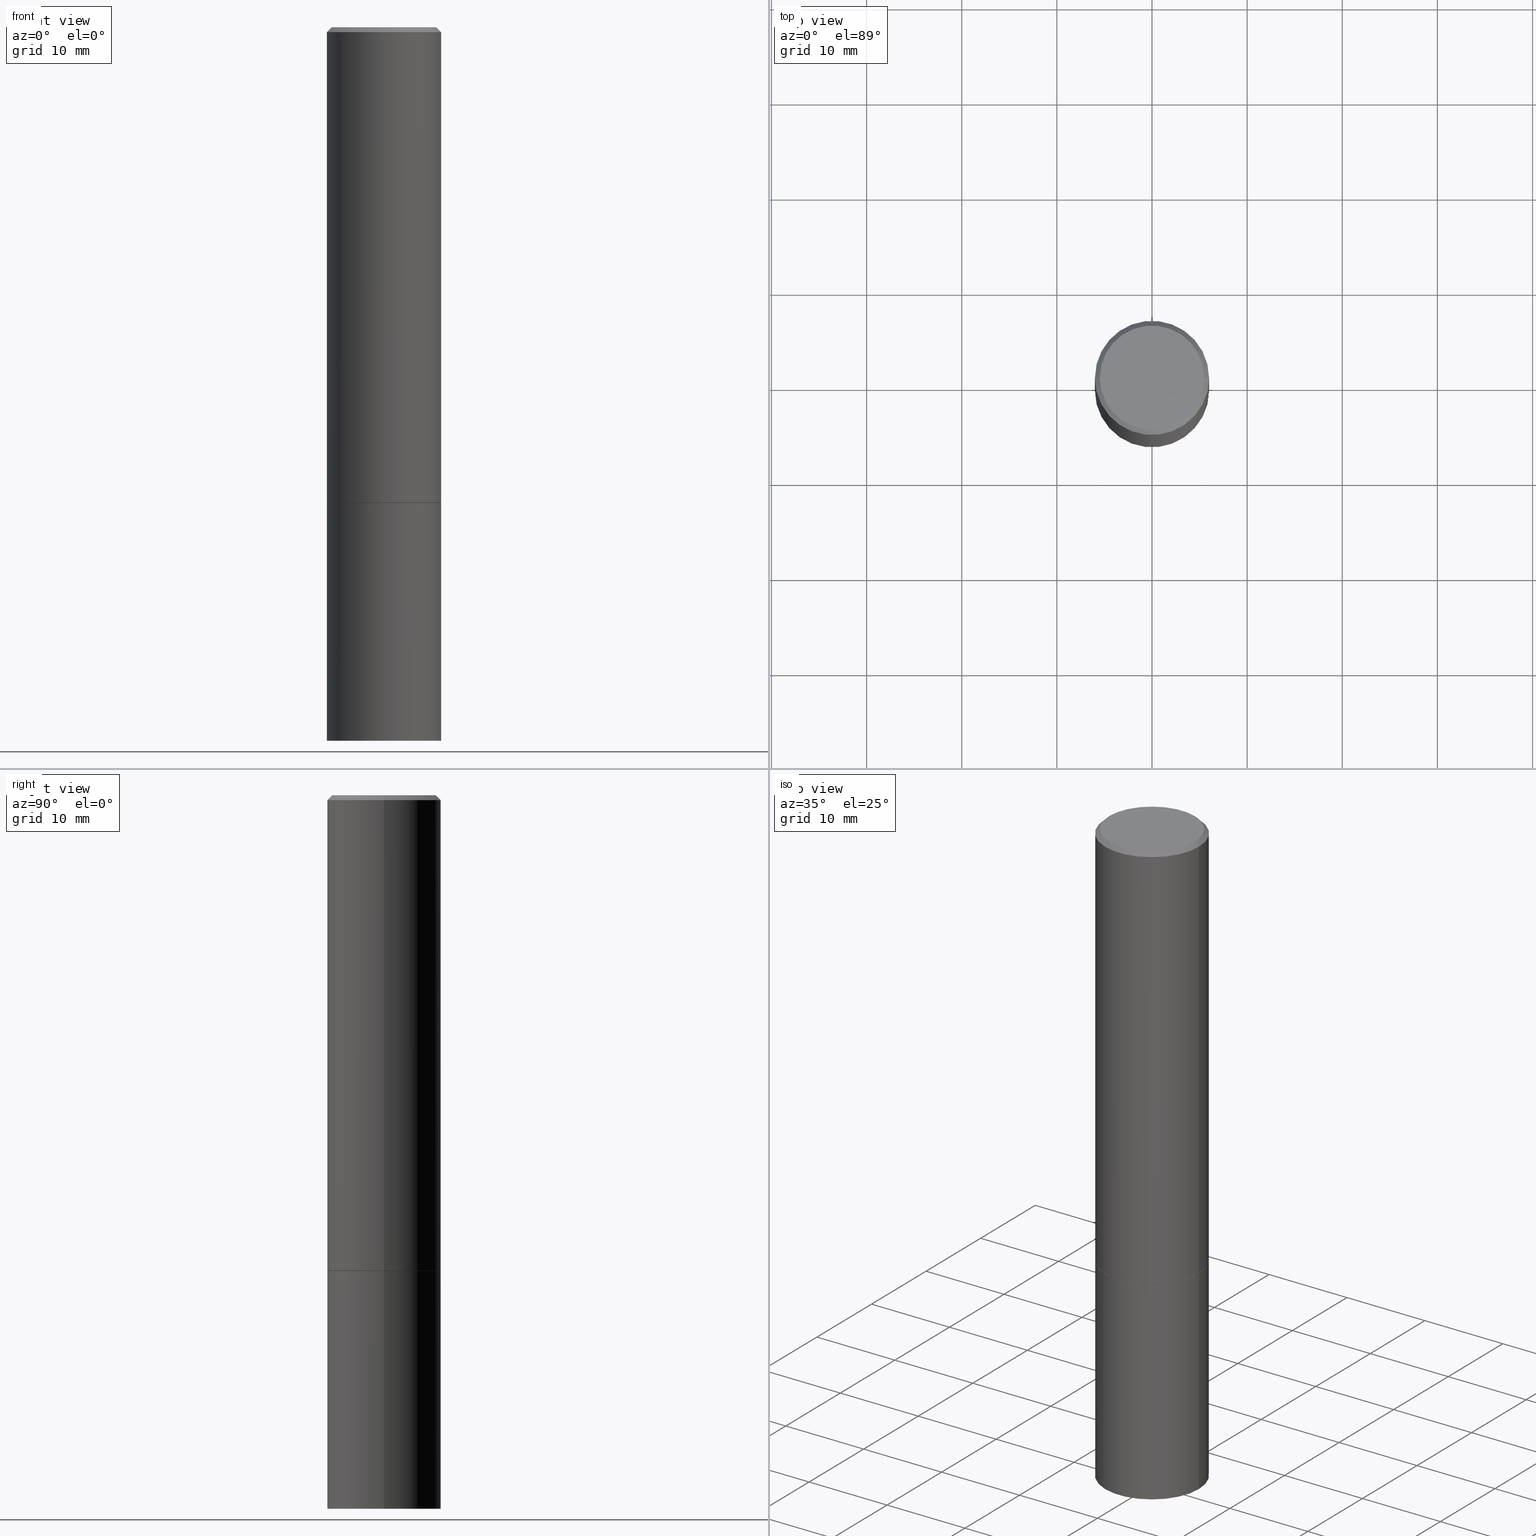
[diagram: canonical four-view strip — front | top / right | iso, engineering-drawing reading convention]
A machine part, canonical four-view strip (front | top / right | iso — engineering-drawing reading convention). The complete STEP part file that produces these views, byte-faithful:
ISO-10303-21;
HEADER;
FILE_DESCRIPTION (( 'STEP AP203' ),
    '1' );
FILE_NAME ('48643.STEP',
    '2024-02-28T12:52:52',
    ( '' ),
    ( '' ),
    'SwSTEP 2.0',
    'SolidWorks 2023',
    '' );
FILE_SCHEMA (( 'CONFIG_CONTROL_DESIGN' ));
ENDSEC;

DATA;
#1 = CARTESIAN_POINT ( 'NONE',  ( -0.2361999999999997157, 1.579546157692631255E-15, -0.02000000000000005593 ) ) ;
#2 = AXIS2_PLACEMENT_3D ( 'NONE', #361, #340, #35 ) ;
#3 = VERTEX_POINT ( 'NONE', #321 ) ;
#4 = CALENDAR_DATE ( 2024, 28, 2 ) ;
#5 = UNCERTAINTY_MEASURE_WITH_UNIT (LENGTH_MEASURE( 1.000000000000000082E-05 ), #218, 'distance_accuracy_value', 'NONE');
#6 = ORIENTED_EDGE ( 'NONE', *, *, #263, .F. ) ;
#7 = PERSON_AND_ORGANIZATION_ROLE ( 'classification_officer' ) ;
#8 = DIRECTION ( 'NONE',  ( -2.445468806185136877E-29, 3.491481338843145188E-15, 1.000000000000000000 ) ) ;
#9 = PERSON_AND_ORGANIZATION ( #34, #161 ) ;
#10 = AXIS2_PLACEMENT_3D ( 'NONE', #69, #178, #286 ) ;
#11 = EDGE_CURVE ( 'NONE', #277, #3, #181, .T. ) ;
#12 = ORIENTED_EDGE ( 'NONE', *, *, #220, .T. ) ;
#13 = CARTESIAN_POINT ( 'NONE',  ( 0.000000000000000000, 0.000000000000000000, 0.000000000000000000 ) ) ;
#14 = CARTESIAN_POINT ( 'NONE',  ( 0.2351999999999999924, -8.515373837304542218E-15, -1.968500000000000139 ) ) ;
#15 = EDGE_LOOP ( 'NONE', ( #118, #61, #172, #335 ) ) ;
#16 = AXIS2_PLACEMENT_3D ( 'NONE', #77, #131, #239 ) ;
#17 = AXIS2_PLACEMENT_3D ( 'NONE', #330, #338, #315 ) ;
#18 = APPROVAL_PERSON_ORGANIZATION ( #23, #353, #357 ) ;
#19 = DIRECTION ( 'NONE',  ( 1.000000000000000000, -6.982962677686265133E-15, 0.000000000000000000 ) ) ;
#20 = CARTESIAN_POINT ( 'NONE',  ( 0.000000000000000000, 0.000000000000000000, 0.000000000000000000 ) ) ;
#21 = DIRECTION ( 'NONE',  ( 2.438088387897960049E-29, -3.491481338843145188E-15, -1.000000000000000000 ) ) ;
#22 = CC_DESIGN_PERSON_AND_ORGANIZATION_ASSIGNMENT ( #264, #97, ( #56 ) ) ;
#23 = PERSON_AND_ORGANIZATION ( #34, #161 ) ;
#24 = AXIS2_PLACEMENT_3D ( 'NONE', #320, #72, #154 ) ;
#25 = PLANE ( 'NONE',  #74 ) ;
#26 = PLANE ( 'NONE',  #155 ) ;
#27 = CC_DESIGN_DATE_AND_TIME_ASSIGNMENT ( #158, #156, ( #73 ) ) ;
#28 = DIRECTION ( 'NONE',  ( 1.000000000000000000, -6.982962677686265133E-15, 0.000000000000000000 ) ) ;
#29 = ORIENTED_EDGE ( 'NONE', *, *, #167, .F. ) ;
#30 = VECTOR ( 'NONE', #162, 39.37007874015748143 ) ;
#31 = LOCAL_TIME ( 7, 52, 52.00000000000000000, #46 ) ;
#32 = DIRECTION ( 'NONE',  ( -1.000000000000000000, 6.982962677686266711E-15, 0.000000000000000000 ) ) ;
#33 = ORIENTED_EDGE ( 'NONE', *, *, #134, .F. ) ;
#34 = PERSON ( 'UNSPECIFIED', 'UNSPECIFIED', 'UNSPECIFIED', ('UNSPECIFIED'), ('UNSPECIFIED'), ('UNSPECIFIED') ) ;
#35 = DIRECTION ( 'NONE',  ( 1.000000000000000000, -6.982962677686266711E-15, 4.875778670202492554E-29 ) ) ;
#36 = CARTESIAN_POINT ( 'NONE',  ( -0.2362000000000000210, -1.791357638610016844E-15, -1.967499999999999805 ) ) ;
#37 = ORIENTED_EDGE ( 'NONE', *, *, #89, .T. ) ;
#38 = ADVANCED_FACE ( 'NONE', ( #242 ), #345, .T. ) ;
#39 = CARTESIAN_POINT ( 'NONE',  ( 0.2361999999999999933, -8.518865318643383648E-15, -1.967499999999999805 ) ) ;
#40 = CIRCLE ( 'NONE', #182, 0.2351999999999999924 ) ;
#41 = PERSON_AND_ORGANIZATION ( #34, #161 ) ;
#42 = ORIENTED_EDGE ( 'NONE', *, *, #54, .F. ) ;
#43 = MECHANICAL_CONTEXT ( 'NONE', #273, 'mechanical' ) ;
#44 = EDGE_CURVE ( 'NONE', #67, #257, #185, .T. ) ;
#45 = EDGE_LOOP ( 'NONE', ( #87, #6 ) ) ;
#46 = COORDINATED_UNIVERSAL_TIME_OFFSET ( 5, 0, .BEHIND. ) ;
#47 = APPROVAL_PERSON_ORGANIZATION ( #9, #99, #322 ) ;
#48 = CALENDAR_DATE ( 2024, 28, 2 ) ;
#49 = CIRCLE ( 'NONE', #240, 0.2361999999999997157 ) ;
#50 = CC_DESIGN_APPROVAL ( #353, ( #107 ) ) ;
#51 = CARTESIAN_POINT ( 'NONE',  ( 1.649375784469568312E-15, 0.2361999999999896960, -2.952800000000000757 ) ) ;
#52 = MANIFOLD_SOLID_BREP ( 'Body-Move/Copy2[1]', #148 ) ;
#53 = DIRECTION ( 'NONE',  ( -1.000000000000000000, 6.982962677686265922E-15, -4.876176775795935793E-29 ) ) ;
#54 = EDGE_CURVE ( 'NONE', #176, #3, #265, .T. ) ;
#55 = FACE_OUTER_BOUND ( 'NONE', #318, .T. ) ;
#56 = PRODUCT ( '48643', '48643', '', ( #43 ) ) ;
#57 = CONICAL_SURFACE ( 'NONE', #302, 0.2361999999999997157, 0.7853981633974473908 ) ;
#58 = CARTESIAN_POINT ( 'NONE',  ( 4.890937612370287172E-31, -6.982962677686310098E-17, -0.02000000000000005593 ) ) ;
#59 = PRODUCT_DEFINITION_SHAPE ( 'NONE', 'NONE',  #73 ) ;
#60 = CARTESIAN_POINT ( 'NONE',  ( 4.813905344975441835E-29, -6.872981015512731707E-15, -1.968500000000000139 ) ) ;
#61 = ORIENTED_EDGE ( 'NONE', *, *, #188, .T. ) ;
#62 = DIRECTION ( 'NONE',  ( -2.445468806185136597E-29, 3.491481338843145583E-15, 1.000000000000000000 ) ) ;
#63 = EDGE_LOOP ( 'NONE', ( #314, #362, #255, #290 ) ) ;
#64 = AXIS2_PLACEMENT_3D ( 'NONE', #13, #299, #191 ) ;
#65 = FACE_OUTER_BOUND ( 'NONE', #45, .T. ) ;
#66 = CARTESIAN_POINT ( 'NONE',  ( -0.2361999999999999933, -6.913011614559027935E-15, -1.968499999999999694 ) ) ;
#67 = VERTEX_POINT ( 'NONE', #194 ) ;
#68 = EDGE_CURVE ( 'NONE', #257, #159, #96, .T. ) ;
#69 = CARTESIAN_POINT ( 'NONE',  ( 4.811459876169255671E-29, -6.869489534173887122E-15, -1.967499999999999805 ) ) ;
#70 = VERTEX_POINT ( 'NONE', #187 ) ;
#71 = CIRCLE ( 'NONE', #270, 0.2351999999999999924 ) ;
#72 = DIRECTION ( 'NONE',  ( -2.445468806185136597E-29, 3.491481338843145583E-15, 1.000000000000000000 ) ) ;
#73 = PRODUCT_DEFINITION ( 'UNKNOWN', '', #88, #204 ) ;
#74 = AXIS2_PLACEMENT_3D ( 'NONE', #51, #21, #80 ) ;
#75 = AXIS2_PLACEMENT_3D ( 'NONE', #112, #90, #207 ) ;
#76 = APPROVAL_STATUS ( 'not_yet_approved' ) ;
#77 = CARTESIAN_POINT ( 'NONE',  ( 0.000000000000000000, 0.000000000000000000, 0.000000000000000000 ) ) ;
#78 = DIRECTION ( 'NONE',  ( 1.000000000000000000, -6.982962677686266711E-15, 0.000000000000000000 ) ) ;
#79 = EDGE_CURVE ( 'NONE', #281, #277, #293, .T. ) ;
#80 = DIRECTION ( 'NONE',  ( -1.000000000000000000, 6.982962677686265922E-15, -4.876176775795935793E-29 ) ) ;
#81 = CALENDAR_DATE ( 2024, 28, 2 ) ;
#82 = CARTESIAN_POINT ( 'NONE',  ( -0.2361999999999997157, 1.579546157692631255E-15, -0.02000000000000005593 ) ) ;
#83 = ADVANCED_FACE ( 'NONE', ( #138 ), #25, .T. ) ;
#84 = CARTESIAN_POINT ( 'NONE',  ( 4.813905344975441835E-29, -6.872981015512731707E-15, -1.968500000000000139 ) ) ;
#85 = ORIENTED_EDGE ( 'NONE', *, *, #116, .T. ) ;
#86 = DIRECTION ( 'NONE',  ( -2.445468806185136597E-29, 3.491481338843145583E-15, 1.000000000000000000 ) ) ;
#87 = ORIENTED_EDGE ( 'NONE', *, *, #116, .F. ) ;
#88 = PRODUCT_DEFINITION_FORMATION_WITH_SPECIFIED_SOURCE ( 'ANY', '', #56, .NOT_KNOWN. ) ;
#89 = EDGE_CURVE ( 'NONE', #243, #159, #100, .T. ) ;
#90 = DIRECTION ( 'NONE',  ( -2.438088387897960049E-29, 3.491481338843145188E-15, 1.000000000000000000 ) ) ;
#91 = FACE_OUTER_BOUND ( 'NONE', #115, .T. ) ;
#92 = ORIENTED_EDGE ( 'NONE', *, *, #44, .F. ) ;
#93 = APPROVAL_DATE_TIME ( #343, #268 ) ;
#94 = ADVANCED_FACE ( 'NONE', ( #196 ), #26, .F. ) ;
#95 = CC_DESIGN_APPROVAL ( #268, ( #88 ) ) ;
#96 = LINE ( 'NONE', #215, #189 ) ;
#97 = PERSON_AND_ORGANIZATION_ROLE ( 'design_owner' ) ;
#98 = APPLICATION_PROTOCOL_DEFINITION ( 'international standard', 'config_control_design', 1994, #273 ) ;
#99 = APPROVAL ( #76, 'UNSPECIFIED' ) ;
#100 = CIRCLE ( 'NONE', #119, 0.2361999999999997157 ) ;
#101 = CARTESIAN_POINT ( 'NONE',  ( 0.2161999999999996980, -1.586759460484350016E-15, 8.537024980211650906E-18 ) ) ;
#102 = APPROVAL_DATE_TIME ( #221, #353 ) ;
#103 = EDGE_CURVE ( 'NONE', #122, #159, #140, .T. ) ;
#104 = COORDINATED_UNIVERSAL_TIME_OFFSET ( 5, 0, .BEHIND. ) ;
#105 = DIRECTION ( 'NONE',  ( 1.000000000000000000, -6.982962677686264344E-15, 0.000000000000000000 ) ) ;
#106 = VECTOR ( 'NONE', #152, 39.37007874015748143 ) ;
#107 = SECURITY_CLASSIFICATION ( '', '', #289 ) ;
#108 = ADVANCED_FACE ( 'NONE', ( #55 ), #222, .T. ) ;
#109 = PLANE ( 'NONE',  #130 ) ;
#110 = DIRECTION ( 'NONE',  ( -1.000000000000000000, 6.982962677686266711E-15, 0.000000000000000000 ) ) ;
#111 = CONICAL_SURFACE ( 'NONE', #307, 0.2351999999999999924, 0.7853981633972775267 ) ;
#112 = CARTESIAN_POINT ( 'NONE',  ( 4.813905344975441835E-29, -6.872981015512731707E-15, -1.968500000000000139 ) ) ;
#113 = EDGE_LOOP ( 'NONE', ( #337, #316 ) ) ;
#114 = CARTESIAN_POINT ( 'NONE',  ( -0.2351999999999999924, -5.201784501004976321E-15, -1.968500000000000139 ) ) ;
#115 = EDGE_LOOP ( 'NONE', ( #125, #285, #297, #33 ) ) ;
#116 = EDGE_CURVE ( 'NONE', #67, #70, #40, .T. ) ;
#117 = CARTESIAN_POINT ( 'NONE',  ( 7.220980290903470182E-29, -1.030964609733603853E-14, -2.952799999999999869 ) ) ;
#118 = ORIENTED_EDGE ( 'NONE', *, *, #348, .T. ) ;
#119 = AXIS2_PLACEMENT_3D ( 'NONE', #58, #305, #78 ) ;
#120 = CARTESIAN_POINT ( 'NONE',  ( -0.2161999999999996980, 1.544631344304200000E-15, 8.537024980190142121E-18 ) ) ;
#121 = ORIENTED_EDGE ( 'NONE', *, *, #79, .T. ) ;
#122 = VERTEX_POINT ( 'NONE', #101 ) ;
#123 = DIMENSIONAL_EXPONENTS ( 1.000000000000000000, 0.000000000000000000, 0.000000000000000000, 0.000000000000000000, 0.000000000000000000, 0.000000000000000000, 0.000000000000000000 ) ;
#124 = COORDINATED_UNIVERSAL_TIME_OFFSET ( 5, 0, .BEHIND. ) ;
#125 = ORIENTED_EDGE ( 'NONE', *, *, #216, .F. ) ;
#126 = VECTOR ( 'NONE', #247, 39.37007874015748143 ) ;
#127 = PERSON_AND_ORGANIZATION_ROLE ( 'creator' ) ;
#128 = ORIENTED_EDGE ( 'NONE', *, *, #363, .F. ) ;
#129 =( NAMED_UNIT ( * ) SI_UNIT ( $, .STERADIAN. ) SOLID_ANGLE_UNIT ( ) );
#130 = AXIS2_PLACEMENT_3D ( 'NONE', #354, #223, #328 ) ;
#131 = DIRECTION ( 'NONE',  ( -2.445468806185136597E-29, 3.491481338843145583E-15, 1.000000000000000000 ) ) ;
#132 = LOCAL_TIME ( 7, 52, 52.00000000000000000, #124 ) ;
#133 = CARTESIAN_POINT ( 'NONE',  ( 0.2361999999999997157, -1.690279253850496996E-15, -0.02000000000000005593 ) ) ;
#134 = EDGE_CURVE ( 'NONE', #309, #243, #301, .T. ) ;
#135 = DIRECTION ( 'NONE',  ( 1.000000000000000000, -6.982962677686264344E-15, 0.000000000000000000 ) ) ;
#136 = CARTESIAN_POINT ( 'NONE',  ( 4.890937612370287172E-31, -6.982962677686310098E-17, -0.02000000000000005593 ) ) ;
#137 = AXIS2_PLACEMENT_3D ( 'NONE', #271, #306, #105 ) ;
#138 = FACE_OUTER_BOUND ( 'NONE', #228, .T. ) ;
#139 = CC_DESIGN_PERSON_AND_ORGANIZATION_ASSIGNMENT ( #319, #184, ( #88 ) ) ;
#140 = LINE ( 'NONE', #352, #30 ) ;
#141 = ORIENTED_EDGE ( 'NONE', *, *, #89, .F. ) ;
#142 = CONICAL_SURFACE ( 'NONE', #241, 0.2361999999999997157, 0.7853981633974473908 ) ;
#143 = FACE_OUTER_BOUND ( 'NONE', #15, .T. ) ;
#144 = ORIENTED_EDGE ( 'NONE', *, *, #220, .F. ) ;
#145 = EDGE_CURVE ( 'NONE', #159, #243, #49, .T. ) ;
#146 = DIRECTION ( 'NONE',  ( 2.445468806185136597E-29, -3.491481338843145583E-15, -1.000000000000000000 ) ) ;
#147 = FACE_OUTER_BOUND ( 'NONE', #287, .T. ) ;
#148 = CLOSED_SHELL ( 'NONE', ( #108, #83, #94, #38 ) ) ;
#149 = VECTOR ( 'NONE', #365, 39.37007874015748143 ) ;
#150 = ADVANCED_FACE ( 'NONE', ( #197 ), #295, .T. ) ;
#151 = APPROVAL_ROLE ( '' ) ;
#152 = DIRECTION ( 'NONE',  ( 0.7071067811864267805, -2.468850131080992517E-15, 0.7071067811866682540 ) ) ;
#153 = DATE_AND_TIME ( #186, #248 ) ;
#154 = DIRECTION ( 'NONE',  ( 1.000000000000000000, -6.982962677686265133E-15, 0.000000000000000000 ) ) ;
#155 = AXIS2_PLACEMENT_3D ( 'NONE', #304, #249, #53 ) ;
#156 = DATE_TIME_ROLE ( 'creation_date' ) ;
#157 = EDGE_CURVE ( 'NONE', #281, #176, #346, .T. ) ;
#158 = DATE_AND_TIME ( #48, #31 ) ;
#159 = VERTEX_POINT ( 'NONE', #133 ) ;
#160 = ADVANCED_FACE ( 'NONE', ( #359 ), #109, .F. ) ;
#161 = ORGANIZATION ( 'UNSPECIFIED', 'UNSPECIFIED', '' ) ;
#162 = DIRECTION ( 'NONE',  ( 0.7071067811865469066, -7.319954787623254468E-15, -0.7071067811865482389 ) ) ;
#163 = SHAPE_DEFINITION_REPRESENTATION ( #59, #237 ) ;
#164 = DIRECTION ( 'NONE',  ( -2.445468806185136597E-29, 3.491481338843145583E-15, 1.000000000000000000 ) ) ;
#165 = CARTESIAN_POINT ( 'NONE',  ( 7.220980290903470182E-29, -1.030964609733603853E-14, -2.952799999999999869 ) ) ;
#166 = CIRCLE ( 'NONE', #2, 0.2161999999999996980 ) ;
#167 = EDGE_CURVE ( 'NONE', #309, #122, #206, .T. ) ;
#168 = CARTESIAN_POINT ( 'NONE',  ( -0.2361999999999999933, -6.913011614559027935E-15, -2.952799999999999869 ) ) ;
#169 = ORIENTED_EDGE ( 'NONE', *, *, #188, .F. ) ;
#170 = ADVANCED_FACE ( 'NONE', ( #65 ), #233, .F. ) ;
#171 = LINE ( 'NONE', #256, #190 ) ;
#172 = ORIENTED_EDGE ( 'NONE', *, *, #145, .F. ) ;
#173 = AXIS2_PLACEMENT_3D ( 'NONE', #313, #227, #209 ) ;
#174 = CARTESIAN_POINT ( 'NONE',  ( 0.2361999999999999933, -1.195902188180553348E-14, -2.952799999999999869 ) ) ;
#175 = CARTESIAN_POINT ( 'NONE',  ( 4.890937612370287172E-31, -6.982962677686310098E-17, -0.02000000000000005593 ) ) ;
#176 = VERTEX_POINT ( 'NONE', #174 ) ;
#177 = PRODUCT_RELATED_PRODUCT_CATEGORY ( 'detail', '', ( #56 ) ) ;
#178 = DIRECTION ( 'NONE',  ( -2.445468806185136597E-29, 3.491481338843145583E-15, 1.000000000000000000 ) ) ;
#179 = APPLICATION_CONTEXT ( 'configuration controlled 3d designs of mechanical parts and assemblies' ) ;
#180 = ORIENTED_EDGE ( 'NONE', *, *, #200, .F. ) ;
#181 = CIRCLE ( 'NONE', #24, 0.2361999999999999933 ) ;
#182 = AXIS2_PLACEMENT_3D ( 'NONE', #195, #329, #135 ) ;
#183 = LOCAL_TIME ( 7, 52, 52.00000000000000000, #104 ) ;
#184 = PERSON_AND_ORGANIZATION_ROLE ( 'design_supplier' ) ;
#185 = LINE ( 'NONE', #14, #106 ) ;
#186 = CALENDAR_DATE ( 2024, 28, 2 ) ;
#187 = CARTESIAN_POINT ( 'NONE',  ( -0.2351999999999999924, -5.196486046656753130E-15, -1.968500000000000139 ) ) ;
#188 = EDGE_CURVE ( 'NONE', #326, #243, #171, .T. ) ;
#189 = VECTOR ( 'NONE', #300, 39.37007874015748143 ) ;
#190 = VECTOR ( 'NONE', #282, 39.37007874015748143 ) ;
#191 = DIRECTION ( 'NONE',  ( 1.000000000000000000, 0.000000000000000000, 0.000000000000000000 ) ) ;
#192 = ORIENTED_EDGE ( 'NONE', *, *, #200, .T. ) ;
#193 = PERSON_AND_ORGANIZATION ( #34, #161 ) ;
#194 = CARTESIAN_POINT ( 'NONE',  ( 0.2351999999999999924, -8.515373837304542218E-15, -1.968500000000000139 ) ) ;
#195 = CARTESIAN_POINT ( 'NONE',  ( 4.813905344975441835E-29, -6.872981015512731707E-15, -1.968500000000000139 ) ) ;
#196 = FACE_OUTER_BOUND ( 'NONE', #113, .T. ) ;
#197 = FACE_OUTER_BOUND ( 'NONE', #236, .T. ) ;
#198 = AXIS2_PLACEMENT_3D ( 'NONE', #360, #276, #334 ) ;
#199 = CYLINDRICAL_SURFACE ( 'NONE', #279, 0.2361999999999998545 ) ;
#200 = EDGE_CURVE ( 'NONE', #70, #326, #336, .T. ) ;
#201 = DIRECTION ( 'NONE',  ( -2.445468806185136597E-29, 3.491481338843145583E-15, 1.000000000000000000 ) ) ;
#202 = ORIENTED_EDGE ( 'NONE', *, *, #263, .T. ) ;
#203 = CARTESIAN_POINT ( 'NONE',  ( 4.890937612370287172E-31, -6.982962677686310098E-17, -0.02000000000000005593 ) ) ;
#204 = DESIGN_CONTEXT ( 'detailed design', #179, 'design' ) ;
#205 = ORIENTED_EDGE ( 'NONE', *, *, #44, .T. ) ;
#206 = CIRCLE ( 'NONE', #17, 0.2161999999999996980 ) ;
#207 = DIRECTION ( 'NONE',  ( 1.000000000000000000, -6.982962677686265922E-15, 4.876176775795935793E-29 ) ) ;
#208 = ORIENTED_EDGE ( 'NONE', *, *, #363, .T. ) ;
#209 = DIRECTION ( 'NONE',  ( 1.000000000000000000, -6.982962677686266711E-15, 4.876176775795935793E-29 ) ) ;
#210 = ORIENTED_EDGE ( 'NONE', *, *, #167, .T. ) ;
#211 = CC_DESIGN_PERSON_AND_ORGANIZATION_ASSIGNMENT ( #212, #127, ( #88 ) ) ;
#212 = PERSON_AND_ORGANIZATION ( #34, #161 ) ;
#213 = ORIENTED_EDGE ( 'NONE', *, *, #134, .T. ) ;
#214 = CC_DESIGN_APPROVAL ( #99, ( #73 ) ) ;
#215 = CARTESIAN_POINT ( 'NONE',  ( 0.2361999999999998545, -1.649375784469495145E-15, 1.151752954442999387E-29 ) ) ;
#216 = EDGE_CURVE ( 'NONE', #122, #309, #166, .T. ) ;
#217 = COORDINATED_UNIVERSAL_TIME_OFFSET ( 5, 0, .BEHIND. ) ;
#218 =( CONVERSION_BASED_UNIT ( 'INCH', #323 ) LENGTH_UNIT ( ) NAMED_UNIT ( #123 ) );
#219 = CIRCLE ( 'NONE', #198, 0.2361999999999999933 ) ;
#220 = EDGE_CURVE ( 'NONE', #176, #281, #226, .T. ) ;
#221 = DATE_AND_TIME ( #81, #183 ) ;
#222 = CYLINDRICAL_SURFACE ( 'NONE', #339, 0.2361999999999999933 ) ;
#223 = DIRECTION ( 'NONE',  ( 2.438088387897960049E-29, -3.491481338843145188E-15, -1.000000000000000000 ) ) ;
#224 = FACE_OUTER_BOUND ( 'NONE', #245, .T. ) ;
#225 = VECTOR ( 'NONE', #275, 39.37007874015748143 ) ;
#226 = CIRCLE ( 'NONE', #332, 0.2361999999999999933 ) ;
#227 = DIRECTION ( 'NONE',  ( -2.445468806185136597E-29, 3.491481338843145583E-15, 1.000000000000000000 ) ) ;
#228 = EDGE_LOOP ( 'NONE', ( #144, #349 ) ) ;
#229 = DIRECTION ( 'NONE',  ( 1.000000000000000000, -6.982962677686264344E-15, 0.000000000000000000 ) ) ;
#230 = CARTESIAN_POINT ( 'NONE',  ( 0.000000000000000000, 0.000000000000000000, 0.000000000000000000 ) ) ;
#231 = AXIS2_PLACEMENT_3D ( 'NONE', #308, #251, #310 ) ;
#232 = ADVANCED_FACE ( 'NONE', ( #224 ), #142, .T. ) ;
#233 = PLANE ( 'NONE',  #75 ) ;
#234 = ORIENTED_EDGE ( 'NONE', *, *, #216, .T. ) ;
#235 = PERSON_AND_ORGANIZATION_ROLE ( 'creator' ) ;
#236 = EDGE_LOOP ( 'NONE', ( #85, #192, #259, #92 ) ) ;
#237 = ADVANCED_BREP_SHAPE_REPRESENTATION ( '48643', ( #52, #291, #64 ), #288 ) ;
#238 = CALENDAR_DATE ( 2024, 28, 2 ) ;
#239 = DIRECTION ( 'NONE',  ( 1.000000000000000000, -6.982962677686266711E-15, 4.876176775795936353E-29 ) ) ;
#240 = AXIS2_PLACEMENT_3D ( 'NONE', #136, #164, #355 ) ;
#241 = AXIS2_PLACEMENT_3D ( 'NONE', #203, #333, #32 ) ;
#242 = FACE_OUTER_BOUND ( 'NONE', #63, .T. ) ;
#243 = VERTEX_POINT ( 'NONE', #1 ) ;
#244 = CC_DESIGN_DATE_AND_TIME_ASSIGNMENT ( #344, #327, ( #107 ) ) ;
#245 = EDGE_LOOP ( 'NONE', ( #311, #29, #213, #37 ) ) ;
#246 = DIRECTION ( 'NONE',  ( -2.445468806185136597E-29, 3.491481338843145583E-15, 1.000000000000000000 ) ) ;
#247 = DIRECTION ( 'NONE',  ( -0.7071067811865469066, 2.468850131082249961E-15, -0.7071067811865482389 ) ) ;
#248 = LOCAL_TIME ( 7, 52, 52.00000000000000000, #217 ) ;
#249 = DIRECTION ( 'NONE',  ( 2.438088387897960049E-29, -3.491481338843145188E-15, -1.000000000000000000 ) ) ;
#250 = CC_DESIGN_PERSON_AND_ORGANIZATION_ASSIGNMENT ( #41, #7, ( #107 ) ) ;
#251 = DIRECTION ( 'NONE',  ( -2.445468806185136597E-29, 3.491481338843145583E-15, 1.000000000000000000 ) ) ;
#252 = APPROVAL_PERSON_ORGANIZATION ( #292, #268, #151 ) ;
#253 = EDGE_LOOP ( 'NONE', ( #210, #234 ) ) ;
#254 = FACE_OUTER_BOUND ( 'NONE', #342, .T. ) ;
#255 = ORIENTED_EDGE ( 'NONE', *, *, #54, .T. ) ;
#256 = CARTESIAN_POINT ( 'NONE',  ( -0.2361999999999998545, 1.678301941865355605E-15, -1.161852468318208056E-29 ) ) ;
#257 = VERTEX_POINT ( 'NONE', #39 ) ;
#258 = DIRECTION ( 'NONE',  ( -2.445468806185136597E-29, 3.491481338843145583E-15, 1.000000000000000000 ) ) ;
#259 = ORIENTED_EDGE ( 'NONE', *, *, #348, .F. ) ;
#260 = CIRCLE ( 'NONE', #10, 0.2361999999999999933 ) ;
#261 = COORDINATED_UNIVERSAL_TIME_OFFSET ( 5, 0, .BEHIND. ) ;
#262 = ORIENTED_EDGE ( 'NONE', *, *, #68, .T. ) ;
#263 = EDGE_CURVE ( 'NONE', #70, #67, #71, .T. ) ;
#264 = PERSON_AND_ORGANIZATION ( #34, #161 ) ;
#265 = LINE ( 'NONE', #350, #312 ) ;
#266 = LOCAL_TIME ( 7, 52, 52.00000000000000000, #261 ) ;
#267 = APPROVAL_STATUS ( 'not_yet_approved' ) ;
#268 = APPROVAL ( #267, 'UNSPECIFIED' ) ;
#269 = CLOSED_SHELL ( 'NONE', ( #150, #298, #283, #232, #324, #341, #170, #160 ) ) ;
#270 = AXIS2_PLACEMENT_3D ( 'NONE', #84, #86, #229 ) ;
#271 = CARTESIAN_POINT ( 'NONE',  ( 4.813905344975441835E-29, -6.872981015512731707E-15, -1.968500000000000139 ) ) ;
#272 = DIRECTION ( 'NONE',  ( 1.000000000000000000, -6.982962677686266711E-15, 4.876176775795936353E-29 ) ) ;
#273 = APPLICATION_CONTEXT ( 'configuration controlled 3d designs of mechanical parts and assemblies' ) ;
#274 = DIRECTION ( 'NONE',  ( -2.445468806185136597E-29, 3.491481338843145583E-15, 1.000000000000000000 ) ) ;
#275 = DIRECTION ( 'NONE',  ( -2.445468806185136877E-29, 3.491481338843145188E-15, 1.000000000000000000 ) ) ;
#276 = DIRECTION ( 'NONE',  ( -2.445468806185136597E-29, 3.491481338843145583E-15, 1.000000000000000000 ) ) ;
#277 = VERTEX_POINT ( 'NONE', #66 ) ;
#278 = CYLINDRICAL_SURFACE ( 'NONE', #173, 0.2361999999999998545 ) ;
#279 = AXIS2_PLACEMENT_3D ( 'NONE', #230, #201, #284 ) ;
#280 = CC_DESIGN_SECURITY_CLASSIFICATION ( #107, ( #88 ) ) ;
#281 = VERTEX_POINT ( 'NONE', #168 ) ;
#282 = DIRECTION ( 'NONE',  ( -2.445468806185136877E-29, 3.491481338843145188E-15, 1.000000000000000000 ) ) ;
#283 = ADVANCED_FACE ( 'NONE', ( #91 ), #57, .T. ) ;
#284 = DIRECTION ( 'NONE',  ( 1.000000000000000000, -6.982962677686266711E-15, 4.876176775795935793E-29 ) ) ;
#285 = ORIENTED_EDGE ( 'NONE', *, *, #103, .T. ) ;
#286 = DIRECTION ( 'NONE',  ( 1.000000000000000000, -6.982962677686269077E-15, 0.000000000000000000 ) ) ;
#287 = EDGE_LOOP ( 'NONE', ( #180, #202, #205, #128 ) ) ;
#288 =( GEOMETRIC_REPRESENTATION_CONTEXT ( 3 ) GLOBAL_UNCERTAINTY_ASSIGNED_CONTEXT ( ( #5 ) ) GLOBAL_UNIT_ASSIGNED_CONTEXT ( ( #218, #325, #129 ) ) REPRESENTATION_CONTEXT ( 'NONE', 'WORKASPACE' ) );
#289 = SECURITY_CLASSIFICATION_LEVEL ( 'unclassified' ) ;
#290 = ORIENTED_EDGE ( 'NONE', *, *, #11, .F. ) ;
#291 = MANIFOLD_SOLID_BREP ( 'Body-Move/Copy2[2]', #269 ) ;
#292 = PERSON_AND_ORGANIZATION ( #34, #161 ) ;
#293 = LINE ( 'NONE', #347, #225 ) ;
#294 = APPLICATION_PROTOCOL_DEFINITION ( 'international standard', 'config_control_design', 1994, #179 ) ;
#295 = CONICAL_SURFACE ( 'NONE', #137, 0.2351999999999999924, 0.7853981633972775267 ) ;
#296 = APPROVAL_DATE_TIME ( #153, #99 ) ;
#297 = ORIENTED_EDGE ( 'NONE', *, *, #145, .T. ) ;
#298 = ADVANCED_FACE ( 'NONE', ( #143 ), #278, .T. ) ;
#299 = DIRECTION ( 'NONE',  ( 0.000000000000000000, 0.000000000000000000, 1.000000000000000000 ) ) ;
#300 = DIRECTION ( 'NONE',  ( -2.445468806185136877E-29, 3.491481338843145188E-15, 1.000000000000000000 ) ) ;
#301 = LINE ( 'NONE', #82, #126 ) ;
#302 = AXIS2_PLACEMENT_3D ( 'NONE', #175, #146, #110 ) ;
#303 = APPROVAL_STATUS ( 'not_yet_approved' ) ;
#304 = CARTESIAN_POINT ( 'NONE',  ( 1.649375784469544054E-15, 0.2361999999999931377, -1.968500000000000583 ) ) ;
#305 = DIRECTION ( 'NONE',  ( -2.445468806185136597E-29, 3.491481338843145583E-15, 1.000000000000000000 ) ) ;
#306 = DIRECTION ( 'NONE',  ( -2.445468806185136597E-29, 3.491481338843145583E-15, 1.000000000000000000 ) ) ;
#307 = AXIS2_PLACEMENT_3D ( 'NONE', #60, #258, #317 ) ;
#308 = CARTESIAN_POINT ( 'NONE',  ( 4.813905344975440714E-29, -6.872981015512730918E-15, -1.968499999999999694 ) ) ;
#309 = VERTEX_POINT ( 'NONE', #120 ) ;
#310 = DIRECTION ( 'NONE',  ( 1.000000000000000000, -6.982962677686265133E-15, 0.000000000000000000 ) ) ;
#311 = ORIENTED_EDGE ( 'NONE', *, *, #103, .F. ) ;
#312 = VECTOR ( 'NONE', #8, 39.37007874015748143 ) ;
#313 = CARTESIAN_POINT ( 'NONE',  ( 0.000000000000000000, 0.000000000000000000, 0.000000000000000000 ) ) ;
#314 = ORIENTED_EDGE ( 'NONE', *, *, #79, .F. ) ;
#315 = DIRECTION ( 'NONE',  ( 1.000000000000000000, -6.982962677686266711E-15, 4.875778670202492554E-29 ) ) ;
#316 = ORIENTED_EDGE ( 'NONE', *, *, #11, .T. ) ;
#317 = DIRECTION ( 'NONE',  ( 1.000000000000000000, -6.982962677686264344E-15, 0.000000000000000000 ) ) ;
#318 = EDGE_LOOP ( 'NONE', ( #12, #121, #366, #42 ) ) ;
#319 = PERSON_AND_ORGANIZATION ( #34, #161 ) ;
#320 = CARTESIAN_POINT ( 'NONE',  ( 4.813905344975440714E-29, -6.872981015512730918E-15, -1.968499999999999694 ) ) ;
#321 = CARTESIAN_POINT ( 'NONE',  ( 0.2361999999999999933, -8.522356799982226655E-15, -1.968499999999999694 ) ) ;
#322 = APPROVAL_ROLE ( '' ) ;
#323 = LENGTH_MEASURE_WITH_UNIT ( LENGTH_MEASURE( 0.02539999999999999897 ), #364 );
#324 = ADVANCED_FACE ( 'NONE', ( #254 ), #199, .T. ) ;
#325 =( NAMED_UNIT ( * ) PLANE_ANGLE_UNIT ( ) SI_UNIT ( $, .RADIAN. ) );
#326 = VERTEX_POINT ( 'NONE', #36 ) ;
#327 = DATE_TIME_ROLE ( 'classification_date' ) ;
#328 = DIRECTION ( 'NONE',  ( -1.000000000000000000, 6.982962677686265922E-15, -4.876176775795935793E-29 ) ) ;
#329 = DIRECTION ( 'NONE',  ( -2.445468806185136597E-29, 3.491481338843145583E-15, 1.000000000000000000 ) ) ;
#330 = CARTESIAN_POINT ( 'NONE',  ( -2.087702828670439639E-46, 2.980686340760894400E-32, 8.537024980200822558E-18 ) ) ;
#331 = CC_DESIGN_PERSON_AND_ORGANIZATION_ASSIGNMENT ( #193, #235, ( #73 ) ) ;
#332 = AXIS2_PLACEMENT_3D ( 'NONE', #117, #62, #28 ) ;
#333 = DIRECTION ( 'NONE',  ( 2.445468806185136597E-29, -3.491481338843145583E-15, -1.000000000000000000 ) ) ;
#334 = DIRECTION ( 'NONE',  ( 1.000000000000000000, -6.982962677686269077E-15, 0.000000000000000000 ) ) ;
#335 = ORIENTED_EDGE ( 'NONE', *, *, #68, .F. ) ;
#336 = LINE ( 'NONE', #114, #149 ) ;
#337 = ORIENTED_EDGE ( 'NONE', *, *, #358, .T. ) ;
#338 = DIRECTION ( 'NONE',  ( -2.445468806185136597E-29, 3.491481338843145583E-15, 1.000000000000000000 ) ) ;
#339 = AXIS2_PLACEMENT_3D ( 'NONE', #20, #246, #272 ) ;
#340 = DIRECTION ( 'NONE',  ( -2.445468806185136597E-29, 3.491481338843145583E-15, 1.000000000000000000 ) ) ;
#341 = ADVANCED_FACE ( 'NONE', ( #147 ), #111, .T. ) ;
#342 = EDGE_LOOP ( 'NONE', ( #169, #208, #262, #141 ) ) ;
#343 = DATE_AND_TIME ( #4, #266 ) ;
#344 = DATE_AND_TIME ( #238, #132 ) ;
#345 = CYLINDRICAL_SURFACE ( 'NONE', #16, 0.2361999999999999933 ) ;
#346 = CIRCLE ( 'NONE', #356, 0.2361999999999999933 ) ;
#347 = CARTESIAN_POINT ( 'NONE',  ( -0.2361999999999999933, 1.678301941865356591E-15, -1.161852468318208757E-29 ) ) ;
#348 = EDGE_CURVE ( 'NONE', #257, #326, #260, .T. ) ;
#349 = ORIENTED_EDGE ( 'NONE', *, *, #157, .F. ) ;
#350 = CARTESIAN_POINT ( 'NONE',  ( 0.2361999999999999933, -1.649375784469496131E-15, 1.151752954443000088E-29 ) ) ;
#351 = CIRCLE ( 'NONE', #231, 0.2361999999999999933 ) ;
#352 = CARTESIAN_POINT ( 'NONE',  ( 0.2361999999999997157, -1.690279253850496996E-15, -0.02000000000000005593 ) ) ;
#353 = APPROVAL ( #303, 'UNSPECIFIED' ) ;
#354 = CARTESIAN_POINT ( 'NONE',  ( 1.509716530915768548E-15, 0.2161999999999996980, -7.505897529677867071E-16 ) ) ;
#355 = DIRECTION ( 'NONE',  ( 1.000000000000000000, -6.982962677686266711E-15, 0.000000000000000000 ) ) ;
#356 = AXIS2_PLACEMENT_3D ( 'NONE', #165, #274, #19 ) ;
#357 = APPROVAL_ROLE ( '' ) ;
#358 = EDGE_CURVE ( 'NONE', #3, #277, #351, .T. ) ;
#359 = FACE_OUTER_BOUND ( 'NONE', #253, .T. ) ;
#360 = CARTESIAN_POINT ( 'NONE',  ( 4.811459876169255671E-29, -6.869489534173887122E-15, -1.967499999999999805 ) ) ;
#361 = CARTESIAN_POINT ( 'NONE',  ( -2.087702828670439639E-46, 2.980686340760894400E-32, 8.537024980200822558E-18 ) ) ;
#362 = ORIENTED_EDGE ( 'NONE', *, *, #157, .T. ) ;
#363 = EDGE_CURVE ( 'NONE', #326, #257, #219, .T. ) ;
#364 =( LENGTH_UNIT ( ) NAMED_UNIT ( * ) SI_UNIT ( $, .METRE. ) );
#365 = DIRECTION ( 'NONE',  ( -0.7071067811864267805, 7.493145998869918709E-15, 0.7071067811866682540 ) ) ;
#366 = ORIENTED_EDGE ( 'NONE', *, *, #358, .F. ) ;
ENDSEC;
END-ISO-10303-21;
